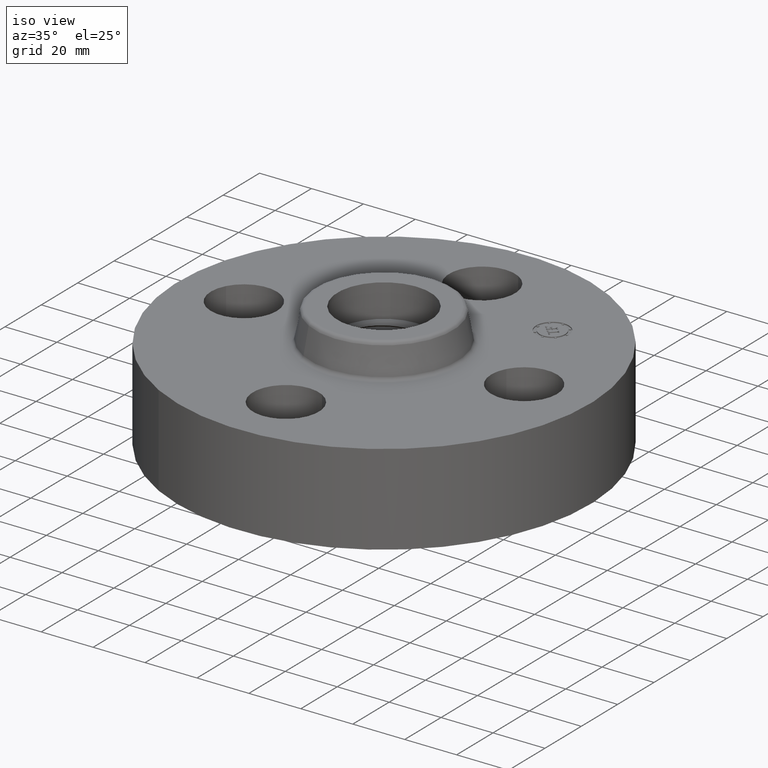
[diagram: clean part render]
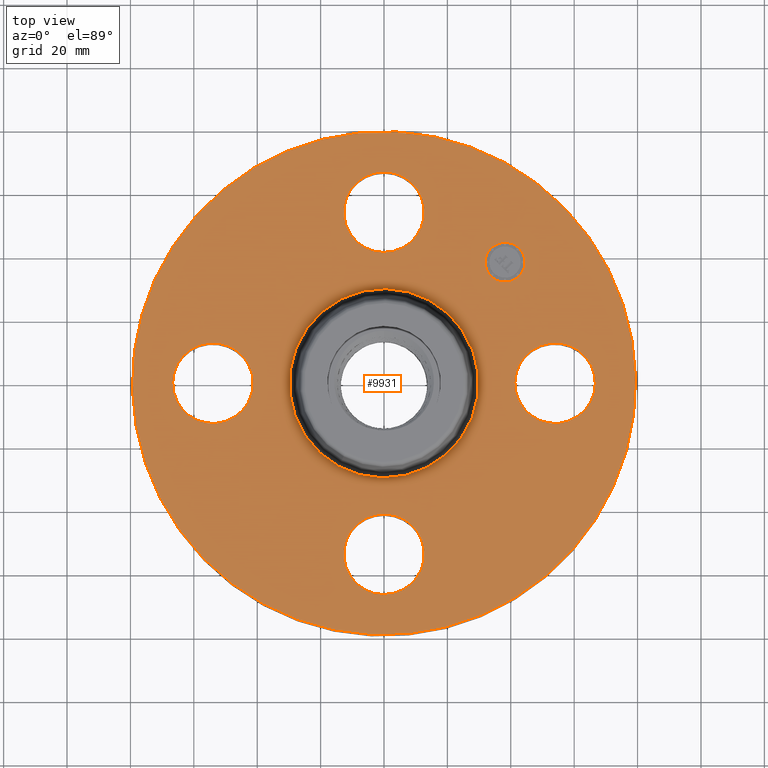
[diagram: tour spotlight — one face highlighted and labeled with its STEP entity id]
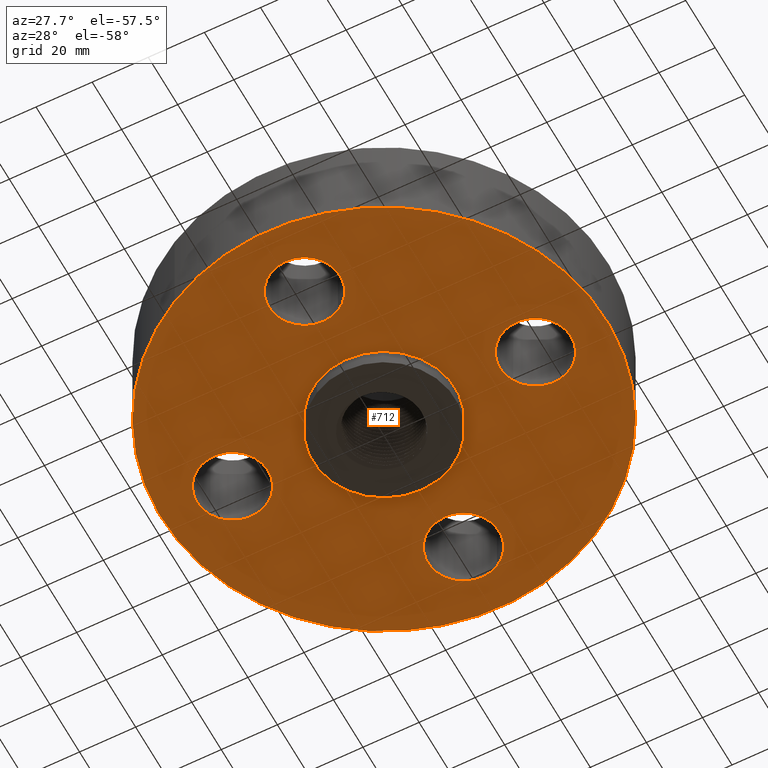
[diagram: tour spotlight — one face highlighted and labeled with its STEP entity id]
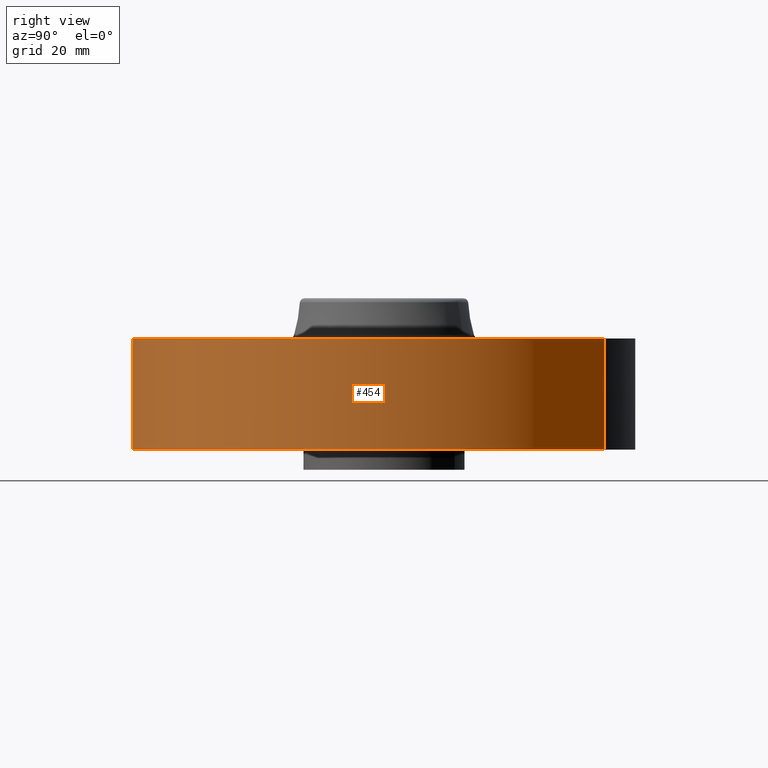
[diagram: tour spotlight — one face highlighted and labeled with its STEP entity id]
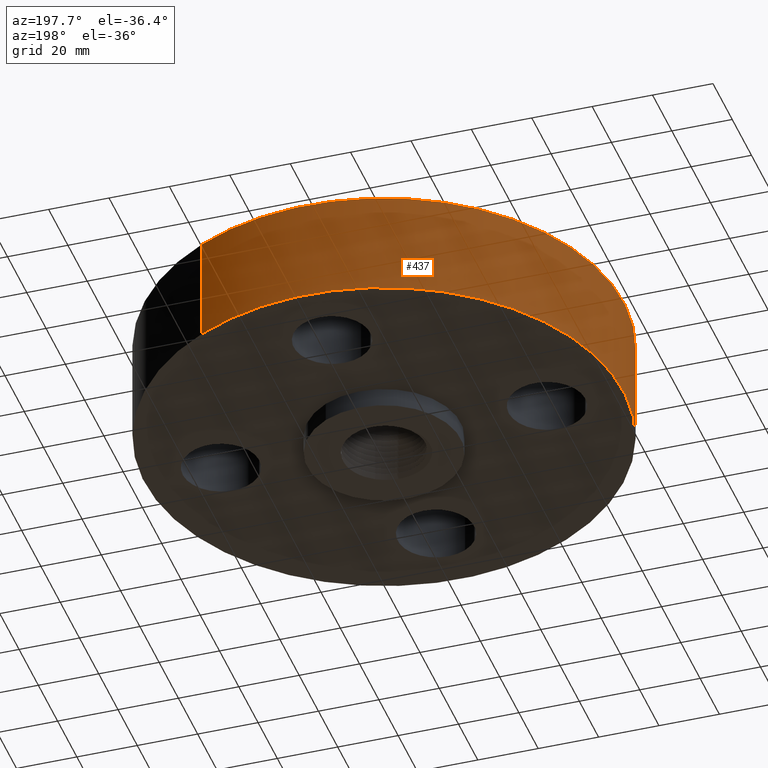
[diagram: tour spotlight — one face highlighted and labeled with its STEP entity id]
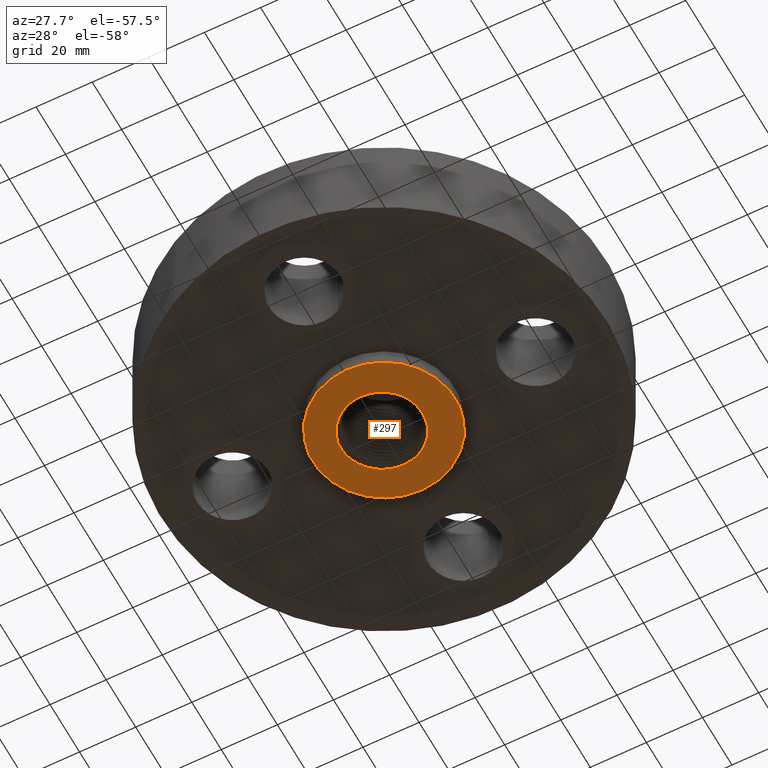
[diagram: tour spotlight — one face highlighted and labeled with its STEP entity id]
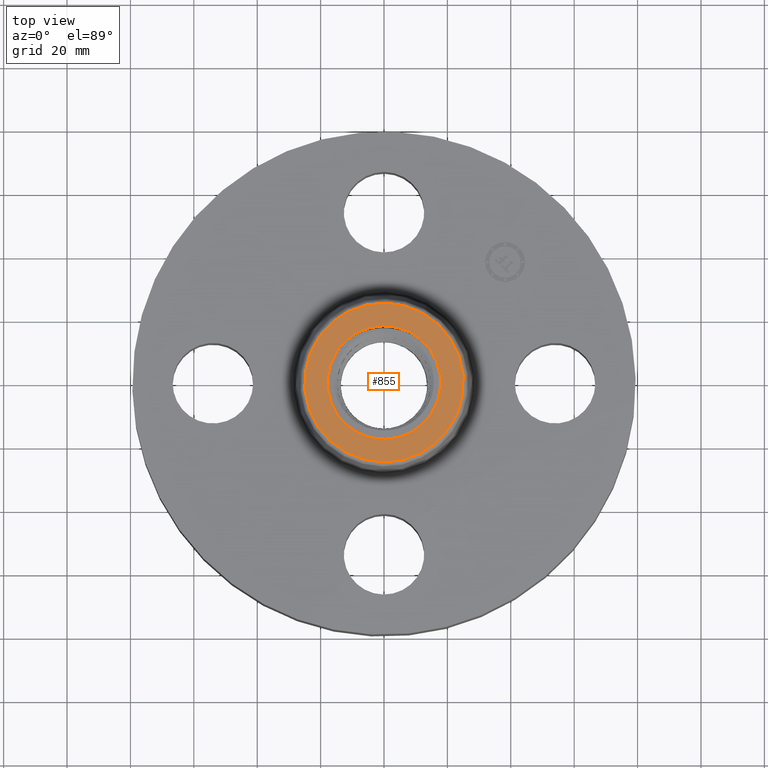
[diagram: tour spotlight — one face highlighted and labeled with its STEP entity id]
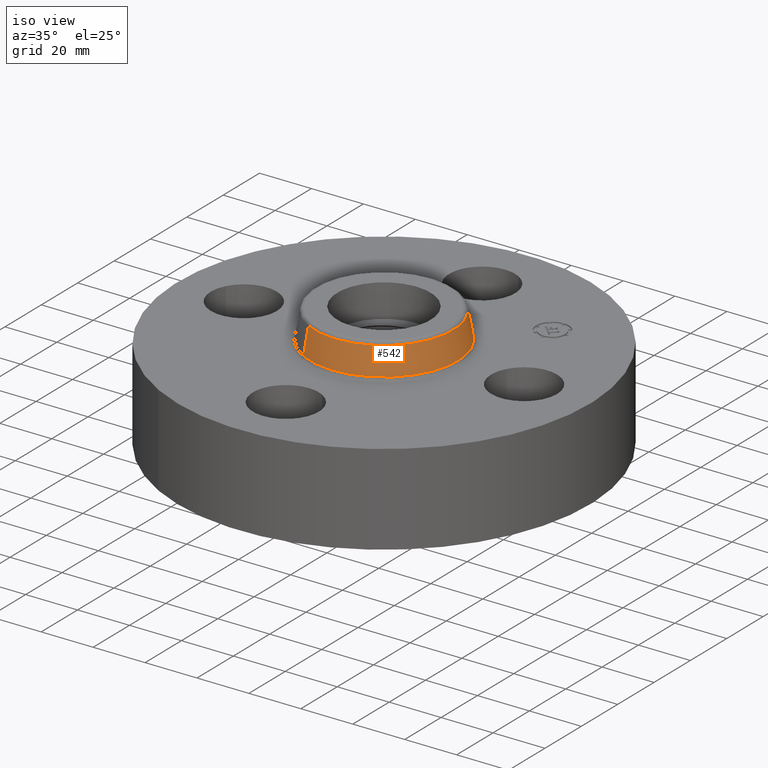
[diagram: tour spotlight — one face highlighted and labeled with its STEP entity id]
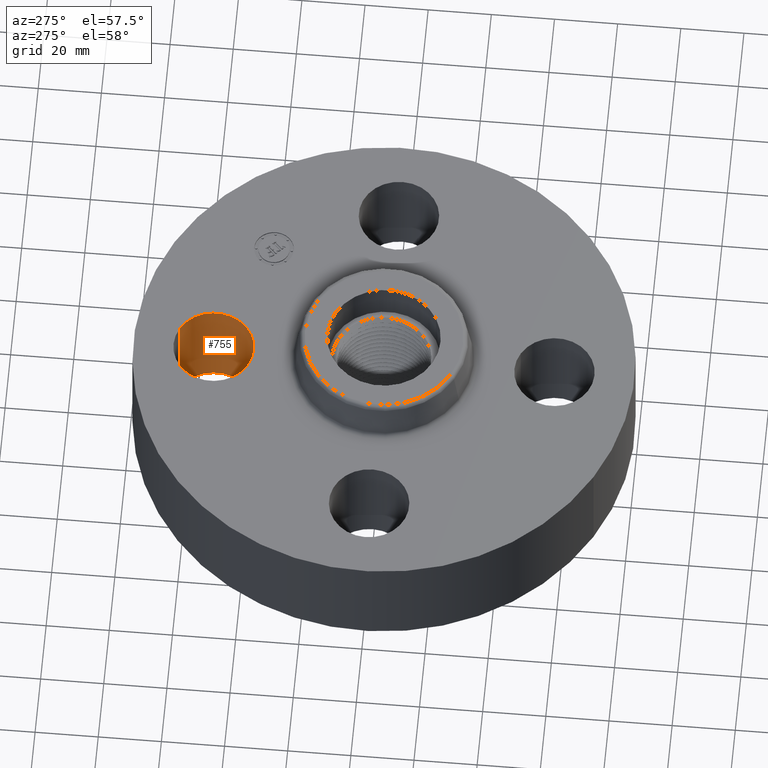
[diagram: tour spotlight — one face highlighted and labeled with its STEP entity id]
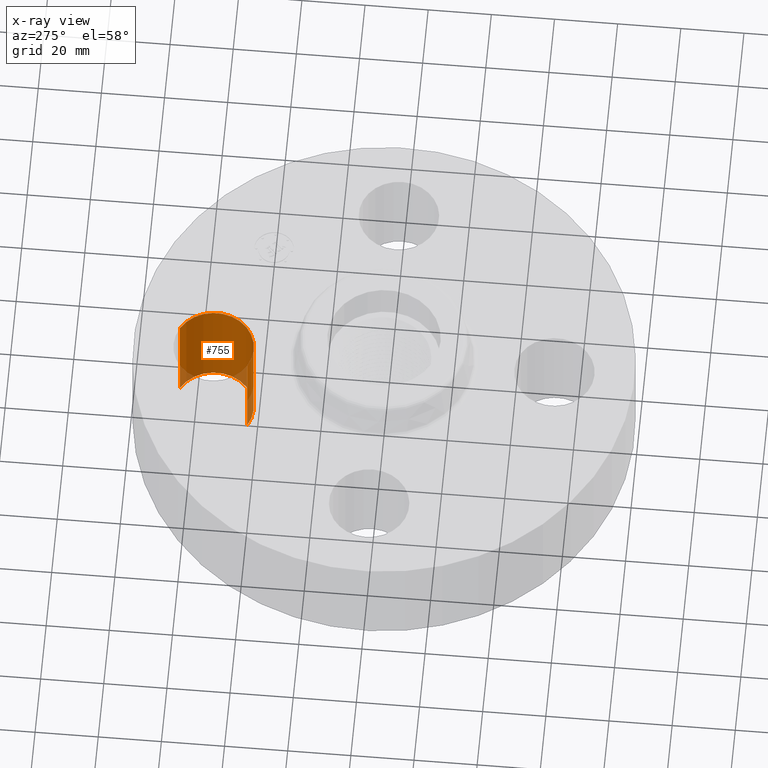
[diagram: x-ray of the same camera — body ghosted, this tour face saturated]
A machine part: a face-by-face anatomy tour. The part has 603 B-rep faces; the first image is the clean iso view, then the 8 largest visible faces are spotlighted one at a time (largest first), each with its STEP entity span.

Face 1 — top view, entity #9931. In plain terms, the highlighted planar face has unit normal (0, 0, -1).
Definition (entity closure, byte-faithful):
#371=AXIS2_PLACEMENT_3D('Circle Axis2P3D',#369,#370,$) ;
#388=AXIS2_PLACEMENT_3D('Circle Axis2P3D',#386,#387,$) ;
#421=AXIS2_PLACEMENT_3D('Circle Axis2P3D',#419,#420,$) ;
#445=AXIS2_PLACEMENT_3D('Circle Axis2P3D',#443,#444,$) ;
#462=AXIS2_PLACEMENT_3D('Circle Axis2P3D',#460,#461,$) ;
#497=AXIS2_PLACEMENT_3D('Circle Axis2P3D',#495,#496,$) ;
#734=AXIS2_PLACEMENT_3D('Circle Axis2P3D',#732,#733,$) ;
#746=AXIS2_PLACEMENT_3D('Circle Axis2P3D',#744,#745,$) ;
#777=AXIS2_PLACEMENT_3D('Circle Axis2P3D',#775,#776,$) ;
#789=AXIS2_PLACEMENT_3D('Circle Axis2P3D',#787,#788,$) ;
#820=AXIS2_PLACEMENT_3D('Circle Axis2P3D',#818,#819,$) ;
#832=AXIS2_PLACEMENT_3D('Circle Axis2P3D',#830,#831,$) ;
#9887=AXIS2_PLACEMENT_3D('Plane Axis2P3D',#9884,#9885,#9886) ;
#9915=AXIS2_PLACEMENT_3D('Circle Axis2P3D',#9913,#9914,$) ;
#9924=AXIS2_PLACEMENT_3D('Circle Axis2P3D',#9922,#9923,$) ;
#352=CARTESIAN_POINT('Vertex',(1.68620871906,0.239712769303,1.38000000001)) ;
#366=CARTESIAN_POINT('Vertex',(2.56379128096,-0.239712769303,1.38000000001)) ;
#369=CARTESIAN_POINT('Axis2P3D Location',(2.12500000001,0.,1.38000000001)) ;
#386=CARTESIAN_POINT('Axis2P3D Location',(2.12500000001,0.,1.38000000001)) ;
#416=CARTESIAN_POINT('Vertex',(-1.49820480814,-2.74244550592,1.38000000001)) ;
#419=CARTESIAN_POINT('Axis2P3D Location',(0.,0.,1.38000000001)) ;
#423=CARTESIAN_POINT('Vertex',(1.49820480814,2.74244550592,1.38000000001)) ;
#443=CARTESIAN_POINT('Axis2P3D Location',(0.,0.,1.38000000001)) ;
#460=CARTESIAN_POINT('Axis2P3D Location',(0.,0.,1.38000000001)) ;
#464=CARTESIAN_POINT('Vertex',(0.563490878489,1.03146313437,1.38000000001)) ;
#466=CARTESIAN_POINT('Vertex',(-0.563490878489,-1.03146313437,1.38000000001)) ;
#495=CARTESIAN_POINT('Axis2P3D Location',(0.,0.,1.38000000001)) ;
#722=CARTESIAN_POINT('Vertex',(-0.239712769303,1.68620871906,1.38000000001)) ;
#729=CARTESIAN_POINT('Vertex',(0.239712769303,2.56379128096,1.38000000001)) ;
#732=CARTESIAN_POINT('Axis2P3D Location',(-3.9035616723E-016,2.12500000001,1.38000000001)) ;
#744=CARTESIAN_POINT('Axis2P3D Location',(-3.9035616723E-016,2.12500000001,1.38000000001)) ;
#765=CARTESIAN_POINT('Vertex',(-1.68620871906,-0.239712769303,1.38000000001)) ;
#772=CARTESIAN_POINT('Vertex',(-2.56379128096,0.239712769303,1.38000000001)) ;
#775=CARTESIAN_POINT('Axis2P3D Location',(-2.12500000001,-2.6023744482E-016,1.38000000001)) ;
#787=CARTESIAN_POINT('Axis2P3D Location',(-2.12500000001,-2.6023744482E-016,1.38000000001)) ;
#808=CARTESIAN_POINT('Vertex',(0.239712769303,-1.68620871906,1.38000000001)) ;
#815=CARTESIAN_POINT('Vertex',(-0.239712769303,-2.56379128096,1.38000000001)) ;
#818=CARTESIAN_POINT('Axis2P3D Location',(1.3011872241E-016,-2.12500000001,1.38000000001)) ;
#830=CARTESIAN_POINT('Axis2P3D Location',(1.3011872241E-016,-2.12500000001,1.38000000001)) ;
#9884=CARTESIAN_POINT('Axis2P3D Location',(0.,3.12500000001,1.38000000001)) ;
#9913=CARTESIAN_POINT('Axis2P3D Location',(1.50260191003,1.50260191003,1.38000000001)) ;
#9917=CARTESIAN_POINT('Vertex',(1.32759298168,1.67761083837,1.38000000001)) ;
#9919=CARTESIAN_POINT('Vertex',(1.67761083837,1.32759298168,1.38000000001)) ;
#9922=CARTESIAN_POINT('Axis2P3D Location',(1.50260191003,1.50260191003,1.38000000001)) ;
#370=DIRECTION('Axis2P3D Direction',(0.,-0.,-0.0393700787402)) ;
#387=DIRECTION('Axis2P3D Direction',(0.,-0.,-0.0393700787402)) ;
#420=DIRECTION('Axis2P3D Direction',(0.,0.,-0.0393700787402)) ;
#444=DIRECTION('Axis2P3D Direction',(0.,0.,-0.0393700787402)) ;
#461=DIRECTION('Axis2P3D Direction',(0.,0.,-0.0393700787402)) ;
#496=DIRECTION('Axis2P3D Direction',(0.,0.,-0.0393700787402)) ;
#733=DIRECTION('Axis2P3D Direction',(0.,0.,-0.0393700787402)) ;
#745=DIRECTION('Axis2P3D Direction',(0.,0.,-0.0393700787402)) ;
#776=DIRECTION('Axis2P3D Direction',(-0.,0.,-0.0393700787402)) ;
#788=DIRECTION('Axis2P3D Direction',(-0.,0.,-0.0393700787402)) ;
#819=DIRECTION('Axis2P3D Direction',(0.,-0.,-0.0393700787402)) ;
#831=DIRECTION('Axis2P3D Direction',(0.,-0.,-0.0393700787402)) ;
#9885=DIRECTION('Axis2P3D Direction',(0.,0.,-0.0393700787402)) ;
#9886=DIRECTION('Axis2P3D XDirection',(0.0393700787402,0.,0.)) ;
#9914=DIRECTION('Axis2P3D Direction',(0.,0.,-0.0393700787402)) ;
#9923=DIRECTION('Axis2P3D Direction',(0.,0.,-0.0393700787402)) ;
#9890=ORIENTED_EDGE('',*,*,#447,.F.) ;
#9891=ORIENTED_EDGE('',*,*,#425,.F.) ;
#9894=ORIENTED_EDGE('',*,*,#373,.T.) ;
#9895=ORIENTED_EDGE('',*,*,#390,.T.) ;
#9898=ORIENTED_EDGE('',*,*,#499,.T.) ;
#9899=ORIENTED_EDGE('',*,*,#468,.T.) ;
#9902=ORIENTED_EDGE('',*,*,#834,.T.) ;
#9903=ORIENTED_EDGE('',*,*,#822,.T.) ;
#9906=ORIENTED_EDGE('',*,*,#791,.T.) ;
#9907=ORIENTED_EDGE('',*,*,#779,.T.) ;
#9910=ORIENTED_EDGE('',*,*,#748,.T.) ;
#9911=ORIENTED_EDGE('',*,*,#736,.T.) ;
#9928=ORIENTED_EDGE('',*,*,#9921,.T.) ;
#9929=ORIENTED_EDGE('',*,*,#9926,.T.) ;
#9896=FACE_BOUND('',#9893,.T.) ;
#9900=FACE_BOUND('',#9897,.T.) ;
#9904=FACE_BOUND('',#9901,.T.) ;
#9908=FACE_BOUND('',#9905,.T.) ;
#9912=FACE_BOUND('',#9909,.T.) ;
#9930=FACE_BOUND('',#9927,.T.) ;
#9931=ADVANCED_FACE('PartBody',(#9892,#9896,#9900,#9904,#9908,#9912,#9930),#9888,.F.) ;
#372=CIRCLE('generated circle',#371,0.500000000002) ;
#389=CIRCLE('generated circle',#388,0.500000000002) ;
#422=CIRCLE('generated circle',#421,3.12500000001) ;
#446=CIRCLE('generated circle',#445,3.12500000001) ;
#463=CIRCLE('generated circle',#462,1.17534597788) ;
#498=CIRCLE('generated circle',#497,1.17534597788) ;
#735=CIRCLE('generated circle',#734,0.500000000002) ;
#747=CIRCLE('generated circle',#746,0.500000000002) ;
#778=CIRCLE('generated circle',#777,0.500000000002) ;
#790=CIRCLE('generated circle',#789,0.500000000002) ;
#821=CIRCLE('generated circle',#820,0.500000000002) ;
#833=CIRCLE('generated circle',#832,0.500000000002) ;
#9916=CIRCLE('generated circle',#9915,0.247500000001) ;
#9925=CIRCLE('generated circle',#9924,0.247500000001) ;
#373=EDGE_CURVE('',#353,#367,#372,.T.) ;
#390=EDGE_CURVE('',#367,#353,#389,.T.) ;
#425=EDGE_CURVE('',#417,#424,#422,.T.) ;
#447=EDGE_CURVE('',#424,#417,#446,.T.) ;
#468=EDGE_CURVE('',#465,#467,#463,.T.) ;
#499=EDGE_CURVE('',#467,#465,#498,.T.) ;
#736=EDGE_CURVE('',#723,#730,#735,.T.) ;
#748=EDGE_CURVE('',#730,#723,#747,.T.) ;
#779=EDGE_CURVE('',#766,#773,#778,.T.) ;
#791=EDGE_CURVE('',#773,#766,#790,.T.) ;
#822=EDGE_CURVE('',#809,#816,#821,.T.) ;
#834=EDGE_CURVE('',#816,#809,#833,.T.) ;
#9921=EDGE_CURVE('',#9918,#9920,#9916,.T.) ;
#9926=EDGE_CURVE('',#9920,#9918,#9925,.T.) ;
#9889=EDGE_LOOP('',(#9890,#9891)) ;
#9893=EDGE_LOOP('',(#9894,#9895)) ;
#9897=EDGE_LOOP('',(#9898,#9899)) ;
#9901=EDGE_LOOP('',(#9902,#9903)) ;
#9905=EDGE_LOOP('',(#9906,#9907)) ;
#9909=EDGE_LOOP('',(#9910,#9911)) ;
#9927=EDGE_LOOP('',(#9928,#9929)) ;
#9892=FACE_OUTER_BOUND('',#9889,.T.) ;
#9888=PLANE('',#9887) ;
#353=VERTEX_POINT('',#352) ;
#367=VERTEX_POINT('',#366) ;
#417=VERTEX_POINT('',#416) ;
#424=VERTEX_POINT('',#423) ;
#465=VERTEX_POINT('',#464) ;
#467=VERTEX_POINT('',#466) ;
#723=VERTEX_POINT('',#722) ;
#730=VERTEX_POINT('',#729) ;
#766=VERTEX_POINT('',#765) ;
#773=VERTEX_POINT('',#772) ;
#809=VERTEX_POINT('',#808) ;
#816=VERTEX_POINT('',#815) ;
#9918=VERTEX_POINT('',#9917) ;
#9920=VERTEX_POINT('',#9919) ;

Face 2 — auxiliary view, entity #712. In plain terms, the highlighted planar face has unit normal (0, 0, -1).
Definition (entity closure, byte-faithful):
#357=AXIS2_PLACEMENT_3D('Circle Axis2P3D',#355,#356,$) ;
#383=AXIS2_PLACEMENT_3D('Circle Axis2P3D',#381,#382,$) ;
#405=AXIS2_PLACEMENT_3D('Circle Axis2P3D',#403,#404,$) ;
#440=AXIS2_PLACEMENT_3D('Circle Axis2P3D',#438,#439,$) ;
#612=AXIS2_PLACEMENT_3D('Circle Axis2P3D',#610,#611,$) ;
#631=AXIS2_PLACEMENT_3D('Circle Axis2P3D',#629,#630,$) ;
#644=AXIS2_PLACEMENT_3D('Plane Axis2P3D',#641,#642,#643) ;
#660=AXIS2_PLACEMENT_3D('Circle Axis2P3D',#658,#659,$) ;
#669=AXIS2_PLACEMENT_3D('Circle Axis2P3D',#667,#668,$) ;
#678=AXIS2_PLACEMENT_3D('Circle Axis2P3D',#676,#677,$) ;
#687=AXIS2_PLACEMENT_3D('Circle Axis2P3D',#685,#686,$) ;
#696=AXIS2_PLACEMENT_3D('Circle Axis2P3D',#694,#695,$) ;
#705=AXIS2_PLACEMENT_3D('Circle Axis2P3D',#703,#704,$) ;
#350=CARTESIAN_POINT('Vertex',(1.68620871906,0.239712769303,0.)) ;
#355=CARTESIAN_POINT('Axis2P3D Location',(2.12500000001,0.,0.)) ;
#359=CARTESIAN_POINT('Vertex',(2.56379128096,-0.239712769303,0.)) ;
#381=CARTESIAN_POINT('Axis2P3D Location',(2.12500000001,0.,0.)) ;
#403=CARTESIAN_POINT('Axis2P3D Location',(0.,0.,2.79741234551E-016)) ;
#407=CARTESIAN_POINT('Vertex',(-1.49820480814,-2.74244550592,2.79741234551E-016)) ;
#409=CARTESIAN_POINT('Vertex',(1.49820480814,2.74244550592,2.79741234551E-016)) ;
#438=CARTESIAN_POINT('Axis2P3D Location',(0.,0.,2.79741234551E-016)) ;
#607=CARTESIAN_POINT('Vertex',(-0.479425538606,-0.877582561894,2.79741234551E-016)) ;
#610=CARTESIAN_POINT('Axis2P3D Location',(0.,0.,1.39870617276E-016)) ;
#614=CARTESIAN_POINT('Vertex',(0.479425538606,0.877582561894,2.79741234551E-016)) ;
#629=CARTESIAN_POINT('Axis2P3D Location',(0.,0.,1.39870617276E-016)) ;
#641=CARTESIAN_POINT('Axis2P3D Location',(0.,1.,0.)) ;
#658=CARTESIAN_POINT('Axis2P3D Location',(-6.99353086378E-017,-2.12500000001,0.)) ;
#662=CARTESIAN_POINT('Vertex',(0.239712769303,-1.68620871906,0.)) ;
#664=CARTESIAN_POINT('Vertex',(-0.239712769303,-2.56379128096,0.)) ;
#667=CARTESIAN_POINT('Axis2P3D Location',(2.79741234551E-016,-2.12500000001,0.)) ;
#676=CARTESIAN_POINT('Axis2P3D Location',(-2.12500000001,0.,0.)) ;
#680=CARTESIAN_POINT('Vertex',(-1.68620871906,-0.239712769303,0.)) ;
#682=CARTESIAN_POINT('Vertex',(-2.56379128096,0.239712769303,0.)) ;
#685=CARTESIAN_POINT('Axis2P3D Location',(-2.12500000001,-1.39870617276E-016,0.)) ;
#694=CARTESIAN_POINT('Axis2P3D Location',(-2.79741234551E-016,2.12500000001,0.)) ;
#698=CARTESIAN_POINT('Vertex',(-0.239712769303,1.68620871906,0.)) ;
#700=CARTESIAN_POINT('Vertex',(0.239712769303,2.56379128096,0.)) ;
#703=CARTESIAN_POINT('Axis2P3D Location',(-7.69288395016E-016,2.12500000001,0.)) ;
#356=DIRECTION('Axis2P3D Direction',(0.,-0.,-0.0393700787402)) ;
#382=DIRECTION('Axis2P3D Direction',(0.,-0.,-0.0393700787402)) ;
#404=DIRECTION('Axis2P3D Direction',(0.,0.,-0.0393700787402)) ;
#439=DIRECTION('Axis2P3D Direction',(0.,0.,-0.0393700787402)) ;
#611=DIRECTION('Axis2P3D Direction',(0.,0.,-0.0393700787402)) ;
#630=DIRECTION('Axis2P3D Direction',(0.,0.,-0.0393700787402)) ;
#642=DIRECTION('Axis2P3D Direction',(0.,0.,-0.0393700787402)) ;
#643=DIRECTION('Axis2P3D XDirection',(0.0393700787402,0.,0.)) ;
#659=DIRECTION('Axis2P3D Direction',(0.,0.,-0.0393700787402)) ;
#668=DIRECTION('Axis2P3D Direction',(0.,0.,-0.0393700787402)) ;
#677=DIRECTION('Axis2P3D Direction',(0.,0.,-0.0393700787402)) ;
#686=DIRECTION('Axis2P3D Direction',(0.,0.,-0.0393700787402)) ;
#695=DIRECTION('Axis2P3D Direction',(0.,0.,-0.0393700787402)) ;
#704=DIRECTION('Axis2P3D Direction',(0.,0.,-0.0393700787402)) ;
#647=ORIENTED_EDGE('',*,*,#411,.T.) ;
#648=ORIENTED_EDGE('',*,*,#442,.T.) ;
#651=ORIENTED_EDGE('',*,*,#385,.F.) ;
#652=ORIENTED_EDGE('',*,*,#361,.F.) ;
#655=ORIENTED_EDGE('',*,*,#633,.F.) ;
#656=ORIENTED_EDGE('',*,*,#616,.F.) ;
#673=ORIENTED_EDGE('',*,*,#666,.F.) ;
#674=ORIENTED_EDGE('',*,*,#671,.F.) ;
#691=ORIENTED_EDGE('',*,*,#684,.F.) ;
#692=ORIENTED_EDGE('',*,*,#689,.F.) ;
#709=ORIENTED_EDGE('',*,*,#702,.F.) ;
#710=ORIENTED_EDGE('',*,*,#707,.F.) ;
#653=FACE_BOUND('',#650,.T.) ;
#657=FACE_BOUND('',#654,.T.) ;
#675=FACE_BOUND('',#672,.T.) ;
#693=FACE_BOUND('',#690,.T.) ;
#711=FACE_BOUND('',#708,.T.) ;
#712=ADVANCED_FACE('PartBody',(#649,#653,#657,#675,#693,#711),#645,.T.) ;
#358=CIRCLE('generated circle',#357,0.500000000002) ;
#384=CIRCLE('generated circle',#383,0.500000000002) ;
#406=CIRCLE('generated circle',#405,3.12500000001) ;
#441=CIRCLE('generated circle',#440,3.12500000001) ;
#613=CIRCLE('generated circle',#612,1.) ;
#632=CIRCLE('generated circle',#631,1.) ;
#661=CIRCLE('generated circle',#660,0.500000000002) ;
#670=CIRCLE('generated circle',#669,0.500000000002) ;
#679=CIRCLE('generated circle',#678,0.500000000002) ;
#688=CIRCLE('generated circle',#687,0.500000000002) ;
#697=CIRCLE('generated circle',#696,0.500000000002) ;
#706=CIRCLE('generated circle',#705,0.500000000002) ;
#361=EDGE_CURVE('',#351,#360,#358,.T.) ;
#385=EDGE_CURVE('',#360,#351,#384,.T.) ;
#411=EDGE_CURVE('',#408,#410,#406,.T.) ;
#442=EDGE_CURVE('',#410,#408,#441,.T.) ;
#616=EDGE_CURVE('',#608,#615,#613,.T.) ;
#633=EDGE_CURVE('',#615,#608,#632,.T.) ;
#666=EDGE_CURVE('',#663,#665,#661,.T.) ;
#671=EDGE_CURVE('',#665,#663,#670,.T.) ;
#684=EDGE_CURVE('',#681,#683,#679,.T.) ;
#689=EDGE_CURVE('',#683,#681,#688,.T.) ;
#702=EDGE_CURVE('',#699,#701,#697,.T.) ;
#707=EDGE_CURVE('',#701,#699,#706,.T.) ;
#646=EDGE_LOOP('',(#647,#648)) ;
#650=EDGE_LOOP('',(#651,#652)) ;
#654=EDGE_LOOP('',(#655,#656)) ;
#672=EDGE_LOOP('',(#673,#674)) ;
#690=EDGE_LOOP('',(#691,#692)) ;
#708=EDGE_LOOP('',(#709,#710)) ;
#649=FACE_OUTER_BOUND('',#646,.T.) ;
#645=PLANE('',#644) ;
#351=VERTEX_POINT('',#350) ;
#360=VERTEX_POINT('',#359) ;
#408=VERTEX_POINT('',#407) ;
#410=VERTEX_POINT('',#409) ;
#608=VERTEX_POINT('',#607) ;
#615=VERTEX_POINT('',#614) ;
#663=VERTEX_POINT('',#662) ;
#665=VERTEX_POINT('',#664) ;
#681=VERTEX_POINT('',#680) ;
#683=VERTEX_POINT('',#682) ;
#699=VERTEX_POINT('',#698) ;
#701=VERTEX_POINT('',#700) ;

Face 3 — right view, entity #454. In plain terms, the highlighted cylindrical surface (partial cylindrical patch) has radius 79.375 mm, axis along (0, 0, -1).
Definition (entity closure, byte-faithful):
#401=AXIS2_PLACEMENT_3D('Cylinder Axis2P3D',#398,#399,#400) ;
#440=AXIS2_PLACEMENT_3D('Circle Axis2P3D',#438,#439,$) ;
#445=AXIS2_PLACEMENT_3D('Circle Axis2P3D',#443,#444,$) ;
#398=CARTESIAN_POINT('Axis2P3D Location',(0.,0.,0.815000000003)) ;
#407=CARTESIAN_POINT('Vertex',(-1.49820480814,-2.74244550592,2.79741234551E-016)) ;
#409=CARTESIAN_POINT('Vertex',(1.49820480814,2.74244550592,2.79741234551E-016)) ;
#412=CARTESIAN_POINT('Line Origine',(-1.49820480814,-2.74244550592,0.690000000003)) ;
#416=CARTESIAN_POINT('Vertex',(-1.49820480814,-2.74244550592,1.38000000001)) ;
#423=CARTESIAN_POINT('Vertex',(1.49820480814,2.74244550592,1.38000000001)) ;
#426=CARTESIAN_POINT('Line Origine',(1.49820480814,2.74244550592,0.690000000003)) ;
#438=CARTESIAN_POINT('Axis2P3D Location',(0.,0.,2.79741234551E-016)) ;
#443=CARTESIAN_POINT('Axis2P3D Location',(0.,0.,1.38000000001)) ;
#399=DIRECTION('Axis2P3D Direction',(0.,0.,-0.0393700787402)) ;
#400=DIRECTION('Axis2P3D XDirection',(0.0188750212049,0.0345504945626,0.)) ;
#413=DIRECTION('Vector Direction',(0.,0.,-0.0393700787402)) ;
#427=DIRECTION('Vector Direction',(0.,0.,-0.0393700787402)) ;
#439=DIRECTION('Axis2P3D Direction',(0.,0.,-0.0393700787402)) ;
#444=DIRECTION('Axis2P3D Direction',(0.,0.,-0.0393700787402)) ;
#414=VECTOR('Line Direction',#413,0.0393700787402) ;
#428=VECTOR('Line Direction',#427,0.0393700787402) ;
#449=ORIENTED_EDGE('',*,*,#442,.F.) ;
#450=ORIENTED_EDGE('',*,*,#430,.T.) ;
#451=ORIENTED_EDGE('',*,*,#447,.T.) ;
#452=ORIENTED_EDGE('',*,*,#418,.F.) ;
#454=ADVANCED_FACE('PartBody',(#453),#402,.T.) ;
#441=CIRCLE('generated circle',#440,3.12500000001) ;
#446=CIRCLE('generated circle',#445,3.12500000001) ;
#402=CYLINDRICAL_SURFACE('generated cylinder',#401,3.12500000001) ;
#418=EDGE_CURVE('',#408,#417,#415,.F.) ;
#430=EDGE_CURVE('',#410,#424,#429,.F.) ;
#442=EDGE_CURVE('',#410,#408,#441,.T.) ;
#447=EDGE_CURVE('',#424,#417,#446,.T.) ;
#448=EDGE_LOOP('',(#449,#450,#451,#452)) ;
#453=FACE_OUTER_BOUND('',#448,.T.) ;
#415=LINE('Line',#412,#414) ;
#429=LINE('Line',#426,#428) ;
#408=VERTEX_POINT('',#407) ;
#410=VERTEX_POINT('',#409) ;
#417=VERTEX_POINT('',#416) ;
#424=VERTEX_POINT('',#423) ;

Face 4 — auxiliary view, entity #437. In plain terms, the highlighted cylindrical surface (partial cylindrical patch) has radius 79.375 mm, axis along (0, 0, -1).
Definition (entity closure, byte-faithful):
#401=AXIS2_PLACEMENT_3D('Cylinder Axis2P3D',#398,#399,#400) ;
#405=AXIS2_PLACEMENT_3D('Circle Axis2P3D',#403,#404,$) ;
#421=AXIS2_PLACEMENT_3D('Circle Axis2P3D',#419,#420,$) ;
#398=CARTESIAN_POINT('Axis2P3D Location',(0.,0.,0.815000000003)) ;
#403=CARTESIAN_POINT('Axis2P3D Location',(0.,0.,2.79741234551E-016)) ;
#407=CARTESIAN_POINT('Vertex',(-1.49820480814,-2.74244550592,2.79741234551E-016)) ;
#409=CARTESIAN_POINT('Vertex',(1.49820480814,2.74244550592,2.79741234551E-016)) ;
#412=CARTESIAN_POINT('Line Origine',(-1.49820480814,-2.74244550592,0.690000000003)) ;
#416=CARTESIAN_POINT('Vertex',(-1.49820480814,-2.74244550592,1.38000000001)) ;
#419=CARTESIAN_POINT('Axis2P3D Location',(0.,0.,1.38000000001)) ;
#423=CARTESIAN_POINT('Vertex',(1.49820480814,2.74244550592,1.38000000001)) ;
#426=CARTESIAN_POINT('Line Origine',(1.49820480814,2.74244550592,0.690000000003)) ;
#399=DIRECTION('Axis2P3D Direction',(0.,0.,-0.0393700787402)) ;
#400=DIRECTION('Axis2P3D XDirection',(0.0188750212049,0.0345504945626,0.)) ;
#404=DIRECTION('Axis2P3D Direction',(0.,0.,-0.0393700787402)) ;
#413=DIRECTION('Vector Direction',(0.,0.,-0.0393700787402)) ;
#420=DIRECTION('Axis2P3D Direction',(0.,0.,-0.0393700787402)) ;
#427=DIRECTION('Vector Direction',(0.,0.,-0.0393700787402)) ;
#414=VECTOR('Line Direction',#413,0.0393700787402) ;
#428=VECTOR('Line Direction',#427,0.0393700787402) ;
#432=ORIENTED_EDGE('',*,*,#411,.F.) ;
#433=ORIENTED_EDGE('',*,*,#418,.T.) ;
#434=ORIENTED_EDGE('',*,*,#425,.T.) ;
#435=ORIENTED_EDGE('',*,*,#430,.F.) ;
#437=ADVANCED_FACE('PartBody',(#436),#402,.T.) ;
#406=CIRCLE('generated circle',#405,3.12500000001) ;
#422=CIRCLE('generated circle',#421,3.12500000001) ;
#402=CYLINDRICAL_SURFACE('generated cylinder',#401,3.12500000001) ;
#411=EDGE_CURVE('',#408,#410,#406,.T.) ;
#418=EDGE_CURVE('',#408,#417,#415,.F.) ;
#425=EDGE_CURVE('',#417,#424,#422,.T.) ;
#430=EDGE_CURVE('',#410,#424,#429,.F.) ;
#431=EDGE_LOOP('',(#432,#433,#434,#435)) ;
#436=FACE_OUTER_BOUND('',#431,.T.) ;
#415=LINE('Line',#412,#414) ;
#429=LINE('Line',#426,#428) ;
#408=VERTEX_POINT('',#407) ;
#410=VERTEX_POINT('',#409) ;
#417=VERTEX_POINT('',#416) ;
#424=VERTEX_POINT('',#423) ;

Face 5 — auxiliary view, entity #297. In plain terms, the highlighted planar face has unit normal (0, 0, -1).
Definition (entity closure, byte-faithful):
#168=AXIS2_PLACEMENT_3D('Plane Axis2P3D',#165,#166,#167) ;
#172=AXIS2_PLACEMENT_3D('Circle Axis2P3D',#170,#171,$) ;
#181=AXIS2_PLACEMENT_3D('Circle Axis2P3D',#179,#180,$) ;
#285=AXIS2_PLACEMENT_3D('Circle Axis2P3D',#283,#284,$) ;
#165=CARTESIAN_POINT('Axis2P3D Location',(0.,0.,-0.250000000001)) ;
#170=CARTESIAN_POINT('Axis2P3D Location',(0.,0.,-0.250000000001)) ;
#174=CARTESIAN_POINT('Vertex',(0.479425538606,0.877582561894,-0.250000000001)) ;
#176=CARTESIAN_POINT('Vertex',(-0.479425538606,-0.877582561894,-0.250000000001)) ;
#179=CARTESIAN_POINT('Axis2P3D Location',(0.,0.,-0.250000000001)) ;
#189=CARTESIAN_POINT('Control Point',(4.87298111973E-005,0.566629327253,-0.250000000001)) ;
#190=CARTESIAN_POINT('Control Point',(0.0488553655335,0.564796087086,-0.250000000001)) ;
#191=CARTESIAN_POINT('Control Point',(0.0973675142853,0.557704145141,-0.250000000001)) ;
#192=CARTESIAN_POINT('Control Point',(0.144819641434,0.54539581353,-0.250000000001)) ;
#193=CARTESIAN_POINT('Control Point',(0.245258667845,0.507301362468,-0.250000000001)) ;
#194=CARTESIAN_POINT('Control Point',(0.333689369887,0.446726114342,-0.250000000001)) ;
#195=CARTESIAN_POINT('Control Point',(0.377206004943,0.407603482007,-0.250000000001)) ;
#196=CARTESIAN_POINT('Control Point',(0.440168010892,0.333840149706,-0.250000000001)) ;
#197=CARTESIAN_POINT('Control Point',(0.485247767973,0.24893047859,-0.250000000001)) ;
#198=CARTESIAN_POINT('Control Point',(0.500208256287,0.213520110066,-0.250000000001)) ;
#199=CARTESIAN_POINT('Control Point',(0.518203665976,0.157587998559,-0.250000000001)) ;
#200=CARTESIAN_POINT('Control Point',(0.52843624367,0.100057530606,-0.250000000001)) ;
#201=CARTESIAN_POINT('Control Point',(0.53104327966,0.0799214333848,-0.250000000001)) ;
#202=CARTESIAN_POINT('Control Point',(0.532693252243,0.0597133910418,-0.250000000001)) ;
#203=CARTESIAN_POINT('Control Point',(0.533385685351,0.0394936444525,-0.250000000001)) ;
#204=CARTESIAN_POINT('Vertex',(4.87298111975E-005,0.566629327253,-0.250000000001)) ;
#206=CARTESIAN_POINT('Vertex',(0.533386205356,0.0394938448885,-0.250000346046)) ;
#210=CARTESIAN_POINT('Control Point',(-0.276716128162,0.506598897193,-0.250000000001)) ;
#211=CARTESIAN_POINT('Control Point',(-0.23036192449,0.529748312167,-0.250000000001)) ;
#212=CARTESIAN_POINT('Control Point',(-0.18150087587,0.5476473118,-0.250000000001)) ;
#213=CARTESIAN_POINT('Control Point',(-0.130903312857,0.559920713434,-0.250000000001)) ;
#214=CARTESIAN_POINT('Control Point',(-0.0738408867216,0.567070640317,-0.250000000001)) ;
#215=CARTESIAN_POINT('Control Point',(-0.0168253712694,0.567053403839,-0.250000000001)) ;
#216=CARTESIAN_POINT('Control Point',(-0.0111965611742,0.566981826038,-0.250000000001)) ;
#217=CARTESIAN_POINT('Control Point',(-0.00557195800633,0.566840447508,-0.250000000001)) ;
#218=CARTESIAN_POINT('Control Point',(4.87298111976E-005,0.566629327253,-0.250000000001)) ;
#219=CARTESIAN_POINT('Vertex',(-0.276716128162,0.506598897193,-0.250000000001)) ;
#223=CARTESIAN_POINT('Control Point',(-0.594957869021,-0.101655704768,-0.250000000001)) ;
#224=CARTESIAN_POINT('Control Point',(-0.601695195508,-0.0517024794489,-0.250000000001)) ;
#225=CARTESIAN_POINT('Control Point',(-0.603203011135,-0.00113422573724,-0.250000000001)) ;
#226=CARTESIAN_POINT('Control Point',(-0.59939318565,0.0493168982897,-0.250000000001)) ;
#227=CARTESIAN_POINT('Control Point',(-0.57946999518,0.158394498032,-0.250000000001)) ;
#228=CARTESIAN_POINT('Control Point',(-0.535218822717,0.259872762297,-0.250000000001)) ;
#229=CARTESIAN_POINT('Control Point',(-0.504219379925,0.311752722884,-0.250000000001)) ;
#230=CARTESIAN_POINT('Control Point',(-0.444190225142,0.388102770032,-0.250000000001)) ;
#231=CARTESIAN_POINT('Control Point',(-0.37048788634,0.450122501772,-0.250000000001)) ;
#232=CARTESIAN_POINT('Control Point',(-0.340653937834,0.471454361781,-0.250000000001)) ;
#233=CARTESIAN_POINT('Control Point',(-0.309304557234,0.49032414753,-0.250000000001)) ;
#234=CARTESIAN_POINT('Control Point',(-0.276716128162,0.506598897193,-0.250000000001)) ;
#235=CARTESIAN_POINT('Vertex',(-0.594957869021,-0.101655704768,-0.250000000001)) ;
#239=CARTESIAN_POINT('Control Point',(-0.594957869021,-0.101655704768,-0.250000000001)) ;
#240=CARTESIAN_POINT('Control Point',(-0.588710139768,-0.131241129925,-0.250000000001)) ;
#241=CARTESIAN_POINT('Control Point',(-0.580615399024,-0.160401952598,-0.250000000001)) ;
#242=CARTESIAN_POINT('Control Point',(-0.570709072603,-0.188981300653,-0.250000000001)) ;
#243=CARTESIAN_POINT('Control Point',(-0.539605758925,-0.263249709623,-0.250000000001)) ;
#244=CARTESIAN_POINT('Control Point',(-0.496540265389,-0.331294901677,-0.250000000001)) ;
#245=CARTESIAN_POINT('Control Point',(-0.465289106798,-0.370739908587,-0.250000000001)) ;
#246=CARTESIAN_POINT('Control Point',(-0.388067107277,-0.449447427677,-0.250000000001)) ;
#247=CARTESIAN_POINT('Control Point',(-0.29502523956,-0.508173032132,-0.250000000001)) ;
#248=CARTESIAN_POINT('Control Point',(-0.240563752469,-0.533468455212,-0.250000000001)) ;
#249=CARTESIAN_POINT('Control Point',(-0.159269441137,-0.559174867293,-0.250000000001)) ;
#250=CARTESIAN_POINT('Control Point',(-0.0755147951787,-0.56961212048,-0.250000000001)) ;
#251=CARTESIAN_POINT('Control Point',(-0.0503132367897,-0.571351977954,-0.250000000001)) ;
#252=CARTESIAN_POINT('Control Point',(-0.0250944352026,-0.571700802887,-0.250000000001)) ;
#253=CARTESIAN_POINT('Control Point',(3.83051686374E-005,-0.570664884892,-0.250000000001)) ;
#254=CARTESIAN_POINT('Vertex',(3.83051686384E-005,-0.570664884892,-0.250000000001)) ;
#258=CARTESIAN_POINT('Control Point',(3.83051686383E-005,-0.570664884892,-0.250000000001)) ;
#259=CARTESIAN_POINT('Control Point',(0.0568153385439,-0.568324656351,-0.250000000001)) ;
#260=CARTESIAN_POINT('Control Point',(0.113154716399,-0.558917375737,-0.250000000001)) ;
#261=CARTESIAN_POINT('Control Point',(0.167901041953,-0.542507125152,-0.250000000001)) ;
#262=CARTESIAN_POINT('Control Point',(0.21984627886,-0.519481711261,-0.250000000001)) ;
#263=CARTESIAN_POINT('Control Point',(0.268007859203,-0.490475610248,-0.250000000001)) ;
#264=CARTESIAN_POINT('Vertex',(0.268007859203,-0.490475610248,-0.250000000001)) ;
#268=CARTESIAN_POINT('Control Point',(0.268007859203,-0.490475610248,-0.250000000001)) ;
#269=CARTESIAN_POINT('Control Point',(0.309561365815,-0.465449330167,-0.250000000001)) ;
#270=CARTESIAN_POINT('Control Point',(0.348299290983,-0.435970297319,-0.250000000001)) ;
#271=CARTESIAN_POINT('Control Point',(0.383568925895,-0.402452613357,-0.250000000001)) ;
#272=CARTESIAN_POINT('Control Point',(0.45235413085,-0.321009055834,-0.250000000001)) ;
#273=CARTESIAN_POINT('Control Point',(0.499669983602,-0.225837412142,-0.250000000001)) ;
#274=CARTESIAN_POINT('Control Point',(0.518388739172,-0.170927347932,-0.250000000001)) ;
#275=CARTESIAN_POINT('Control Point',(0.530893682709,-0.107765264617,-0.250000000001)) ;
#276=CARTESIAN_POINT('Control Point',(0.533954673172,-0.0442117020363,-0.250000000001)) ;
#277=CARTESIAN_POINT('Control Point',(0.53417142532,-0.0375639414092,-0.250000000001)) ;
#278=CARTESIAN_POINT('Control Point',(0.534284786773,-0.0309186771562,-0.250000000001)) ;
#279=CARTESIAN_POINT('Control Point',(0.534294900372,-0.0242755486495,-0.250000000001)) ;
#280=CARTESIAN_POINT('Vertex',(0.53429516318,-0.0242755660594,-0.249999847753)) ;
#283=CARTESIAN_POINT('Axis2P3D Location',(1.39870617276E-016,3.49676543189E-017,-0.250000000001)) ;
#166=DIRECTION('Axis2P3D Direction',(0.,0.,-0.0393700787402)) ;
#167=DIRECTION('Axis2P3D XDirection',(0.0393700787402,0.,0.)) ;
#171=DIRECTION('Axis2P3D Direction',(0.,0.,-0.0393700787402)) ;
#180=DIRECTION('Axis2P3D Direction',(0.,0.,-0.0393700787402)) ;
#284=DIRECTION('Axis2P3D Direction',(0.,0.,-0.0393700787402)) ;
#185=ORIENTED_EDGE('',*,*,#178,.T.) ;
#186=ORIENTED_EDGE('',*,*,#183,.T.) ;
#289=ORIENTED_EDGE('',*,*,#208,.F.) ;
#290=ORIENTED_EDGE('',*,*,#221,.F.) ;
#291=ORIENTED_EDGE('',*,*,#237,.F.) ;
#292=ORIENTED_EDGE('',*,*,#256,.T.) ;
#293=ORIENTED_EDGE('',*,*,#266,.T.) ;
#294=ORIENTED_EDGE('',*,*,#282,.T.) ;
#295=ORIENTED_EDGE('',*,*,#287,.F.) ;
#296=FACE_BOUND('',#288,.T.) ;
#297=ADVANCED_FACE('PartBody',(#187,#296),#169,.T.) ;
#188=B_SPLINE_CURVE_WITH_KNOTS('',5,(#189,#190,#191,#192,#193,#194,#195,#196,#197,#198,#199,#200,#201,#202,#203),.UNSPECIFIED.,.F.,.U.,(6,3,3,3,6),(0.,8.79210017326,19.3482119842,26.3845995221,30.1349858297),.UNSPECIFIED.) ;
#209=B_SPLINE_CURVE_WITH_KNOTS('',5,(#210,#211,#212,#213,#214,#215,#216,#217,#218),.UNSPECIFIED.,.F.,.U.,(6,3,6),(0.,9.24320906966,10.2557281583),.UNSPECIFIED.) ;
#222=B_SPLINE_CURVE_WITH_KNOTS('',5,(#223,#224,#225,#226,#227,#228,#229,#230,#231,#232,#233,#234),.UNSPECIFIED.,.F.,.U.,(6,3,3,6),(0.,8.80525746484,19.371015432,25.8692753253),.UNSPECIFIED.) ;
#238=B_SPLINE_CURVE_WITH_KNOTS('',5,(#239,#240,#241,#242,#243,#244,#245,#246,#247,#248,#249,#250,#251,#252,#253),.UNSPECIFIED.,.F.,.U.,(6,3,3,3,6),(0.,5.28238950725,14.0882889048,24.6563131378,29.1738679096),.UNSPECIFIED.) ;
#257=B_SPLINE_CURVE_WITH_KNOTS('',5,(#258,#259,#260,#261,#262,#263),.UNSPECIFIED.,.F.,.U.,(6,6),(0.,10.2055468018),.UNSPECIFIED.) ;
#267=B_SPLINE_CURVE_WITH_KNOTS('',5,(#268,#269,#270,#271,#272,#273,#274,#275,#276,#277,#278,#279),.UNSPECIFIED.,.F.,.U.,(6,3,3,6),(0.,8.80528114792,19.3832712026,20.618032294),.UNSPECIFIED.) ;
#173=CIRCLE('generated circle',#172,1.) ;
#182=CIRCLE('generated circle',#181,1.) ;
#286=CIRCLE('generated circle',#285,0.534846351222) ;
#178=EDGE_CURVE('',#175,#177,#173,.T.) ;
#183=EDGE_CURVE('',#177,#175,#182,.T.) ;
#208=EDGE_CURVE('',#205,#207,#188,.T.) ;
#221=EDGE_CURVE('',#220,#205,#209,.T.) ;
#237=EDGE_CURVE('',#236,#220,#222,.T.) ;
#256=EDGE_CURVE('',#236,#255,#238,.T.) ;
#266=EDGE_CURVE('',#255,#265,#257,.T.) ;
#282=EDGE_CURVE('',#265,#281,#267,.T.) ;
#287=EDGE_CURVE('',#207,#281,#286,.T.) ;
#184=EDGE_LOOP('',(#185,#186)) ;
#288=EDGE_LOOP('',(#289,#290,#291,#292,#293,#294,#295)) ;
#187=FACE_OUTER_BOUND('',#184,.T.) ;
#169=PLANE('',#168) ;
#175=VERTEX_POINT('',#174) ;
#177=VERTEX_POINT('',#176) ;
#205=VERTEX_POINT('',#204) ;
#207=VERTEX_POINT('',#206) ;
#220=VERTEX_POINT('',#219) ;
#236=VERTEX_POINT('',#235) ;
#255=VERTEX_POINT('',#254) ;
#265=VERTEX_POINT('',#264) ;
#281=VERTEX_POINT('',#280) ;

Face 6 — top view, entity #855. In plain terms, the highlighted planar face has unit normal (0, 0, -1).
Definition (entity closure, byte-faithful):
#305=AXIS2_PLACEMENT_3D('Circle Axis2P3D',#303,#304,$) ;
#331=AXIS2_PLACEMENT_3D('Circle Axis2P3D',#329,#330,$) ;
#569=AXIS2_PLACEMENT_3D('Circle Axis2P3D',#567,#568,$) ;
#588=AXIS2_PLACEMENT_3D('Circle Axis2P3D',#586,#587,$) ;
#845=AXIS2_PLACEMENT_3D('Plane Axis2P3D',#842,#843,#844) ;
#303=CARTESIAN_POINT('Axis2P3D Location',(0.,0.,1.88000000001)) ;
#307=CARTESIAN_POINT('Vertex',(0.337995004717,-0.618695706135,1.88000000001)) ;
#309=CARTESIAN_POINT('Vertex',(-0.337995004717,0.618695706135,1.88000000001)) ;
#329=CARTESIAN_POINT('Axis2P3D Location',(0.,0.,1.88000000001)) ;
#564=CARTESIAN_POINT('Vertex',(0.472948754526,0.865726888159,1.88000000001)) ;
#567=CARTESIAN_POINT('Axis2P3D Location',(0.,0.,1.88000000001)) ;
#571=CARTESIAN_POINT('Vertex',(-0.472948754526,-0.865726888159,1.88000000001)) ;
#586=CARTESIAN_POINT('Axis2P3D Location',(0.,0.,1.88000000001)) ;
#842=CARTESIAN_POINT('Axis2P3D Location',(0.,0.986490531779,1.88000000001)) ;
#304=DIRECTION('Axis2P3D Direction',(0.,0.,0.0393700787402)) ;
#330=DIRECTION('Axis2P3D Direction',(0.,0.,0.0393700787402)) ;
#568=DIRECTION('Axis2P3D Direction',(0.,0.,-0.0393700787402)) ;
#587=DIRECTION('Axis2P3D Direction',(0.,0.,-0.0393700787402)) ;
#843=DIRECTION('Axis2P3D Direction',(0.,0.,-0.0393700787402)) ;
#844=DIRECTION('Axis2P3D XDirection',(0.0393700787402,0.,0.)) ;
#848=ORIENTED_EDGE('',*,*,#573,.F.) ;
#849=ORIENTED_EDGE('',*,*,#590,.F.) ;
#852=ORIENTED_EDGE('',*,*,#333,.T.) ;
#853=ORIENTED_EDGE('',*,*,#311,.T.) ;
#854=FACE_BOUND('',#851,.T.) ;
#855=ADVANCED_FACE('PartBody',(#850,#854),#846,.F.) ;
#306=CIRCLE('generated circle',#305,0.705000000003) ;
#332=CIRCLE('generated circle',#331,0.705000000003) ;
#570=CIRCLE('generated circle',#569,0.986490531779) ;
#589=CIRCLE('generated circle',#588,0.986490531779) ;
#311=EDGE_CURVE('',#308,#310,#306,.F.) ;
#333=EDGE_CURVE('',#310,#308,#332,.F.) ;
#573=EDGE_CURVE('',#565,#572,#570,.T.) ;
#590=EDGE_CURVE('',#572,#565,#589,.T.) ;
#847=EDGE_LOOP('',(#848,#849)) ;
#851=EDGE_LOOP('',(#852,#853)) ;
#850=FACE_OUTER_BOUND('',#847,.T.) ;
#846=PLANE('',#845) ;
#308=VERTEX_POINT('',#307) ;
#310=VERTEX_POINT('',#309) ;
#565=VERTEX_POINT('',#564) ;
#572=VERTEX_POINT('',#571) ;

Face 7 — iso view, entity #542. In plain terms, the highlighted conical surface has half-angle 10 deg.
Definition (entity closure, byte-faithful):
#478=AXIS2_PLACEMENT_3D('Circle Axis2P3D',#476,#477,$) ;
#515=AXIS2_PLACEMENT_3D('Cone Axis2P3D',#512,#513,#514) ;
#526=AXIS2_PLACEMENT_3D('Circle Axis2P3D',#524,#525,$) ;
#473=CARTESIAN_POINT('Vertex',(0.535162359244,0.97960812772,1.42958110935)) ;
#476=CARTESIAN_POINT('Axis2P3D Location',(0.,0.,1.42958110935)) ;
#480=CARTESIAN_POINT('Vertex',(-0.535162359244,-0.97960812772,1.42958110935)) ;
#512=CARTESIAN_POINT('Axis2P3D Location',(0.,0.,1.83041889067)) ;
#517=CARTESIAN_POINT('Line Origine',(0.518219816508,0.948595011265,1.63000000001)) ;
#521=CARTESIAN_POINT('Vertex',(0.501277273771,0.917581894811,1.83041889067)) ;
#524=CARTESIAN_POINT('Axis2P3D Location',(0.,0.,1.83041889067)) ;
#528=CARTESIAN_POINT('Vertex',(-0.501277273771,-0.917581894811,1.83041889067)) ;
#531=CARTESIAN_POINT('Line Origine',(-0.518219816508,-0.948595011265,1.63000000001)) ;
#477=DIRECTION('Axis2P3D Direction',(0.,0.,-0.0393700787402)) ;
#513=DIRECTION('Axis2P3D Direction',(0.,0.,-0.0393700787402)) ;
#514=DIRECTION('Axis2P3D XDirection',(-0.0188750212049,-0.0345504945626,0.)) ;
#518=DIRECTION('Vector Direction',(0.00327761303565,0.00599963041829,-0.03877195878)) ;
#525=DIRECTION('Axis2P3D Direction',(0.,0.,-0.0393700787402)) ;
#532=DIRECTION('Vector Direction',(-0.00327761303565,-0.00599963041829,-0.03877195878)) ;
#519=VECTOR('Line Direction',#518,0.0393700787402) ;
#533=VECTOR('Line Direction',#532,0.0393700787402) ;
#537=ORIENTED_EDGE('',*,*,#482,.F.) ;
#538=ORIENTED_EDGE('',*,*,#523,.T.) ;
#539=ORIENTED_EDGE('',*,*,#530,.T.) ;
#540=ORIENTED_EDGE('',*,*,#535,.F.) ;
#542=ADVANCED_FACE('PartBody',(#541),#516,.T.) ;
#479=CIRCLE('generated circle',#478,1.11625751269) ;
#527=CIRCLE('generated circle',#526,1.04557899696) ;
#516=CONICAL_SURFACE('Cone',#515,1.04557899696,0.174532925199) ;
#482=EDGE_CURVE('',#474,#481,#479,.T.) ;
#523=EDGE_CURVE('',#474,#522,#520,.F.) ;
#530=EDGE_CURVE('',#522,#529,#527,.T.) ;
#535=EDGE_CURVE('',#481,#529,#534,.F.) ;
#536=EDGE_LOOP('',(#537,#538,#539,#540)) ;
#541=FACE_OUTER_BOUND('',#536,.T.) ;
#520=LINE('Line',#517,#519) ;
#534=LINE('Line',#531,#533) ;
#474=VERTEX_POINT('',#473) ;
#481=VERTEX_POINT('',#480) ;
#522=VERTEX_POINT('',#521) ;
#529=VERTEX_POINT('',#528) ;

Face 8 — auxiliary view, entity #755. An x-ray twin of the same camera follows (body ghosted, this face saturated) — the face is partly hidden behind the body. In plain terms, the highlighted cylindrical surface (partial cylindrical patch) has radius 12.7 mm, axis along (0, 0, -1).
Definition (entity closure, byte-faithful):
#705=AXIS2_PLACEMENT_3D('Circle Axis2P3D',#703,#704,$) ;
#716=AXIS2_PLACEMENT_3D('Cylinder Axis2P3D',#713,#714,#715) ;
#746=AXIS2_PLACEMENT_3D('Circle Axis2P3D',#744,#745,$) ;
#698=CARTESIAN_POINT('Vertex',(-0.239712769303,1.68620871906,0.)) ;
#700=CARTESIAN_POINT('Vertex',(0.239712769303,2.56379128096,0.)) ;
#703=CARTESIAN_POINT('Axis2P3D Location',(-7.69288395016E-016,2.12500000001,0.)) ;
#713=CARTESIAN_POINT('Axis2P3D Location',(-3.9035616723E-016,2.12500000001,1.37606299213)) ;
#718=CARTESIAN_POINT('Line Origine',(-0.239712769303,1.68620871906,0.690000000003)) ;
#722=CARTESIAN_POINT('Vertex',(-0.239712769303,1.68620871906,1.38000000001)) ;
#725=CARTESIAN_POINT('Line Origine',(0.239712769303,2.56379128096,0.690000000003)) ;
#729=CARTESIAN_POINT('Vertex',(0.239712769303,2.56379128096,1.38000000001)) ;
#744=CARTESIAN_POINT('Axis2P3D Location',(-3.9035616723E-016,2.12500000001,1.38000000001)) ;
#704=DIRECTION('Axis2P3D Direction',(0.,0.,-0.0393700787402)) ;
#714=DIRECTION('Axis2P3D Direction',(0.,0.,-0.0393700787402)) ;
#715=DIRECTION('Axis2P3D XDirection',(0.0188750212049,0.0345504945626,0.)) ;
#719=DIRECTION('Vector Direction',(0.,0.,-0.0393700787402)) ;
#726=DIRECTION('Vector Direction',(0.,0.,-0.0393700787402)) ;
#745=DIRECTION('Axis2P3D Direction',(0.,0.,-0.0393700787402)) ;
#720=VECTOR('Line Direction',#719,0.0393700787402) ;
#727=VECTOR('Line Direction',#726,0.0393700787402) ;
#750=ORIENTED_EDGE('',*,*,#731,.F.) ;
#751=ORIENTED_EDGE('',*,*,#707,.T.) ;
#752=ORIENTED_EDGE('',*,*,#724,.T.) ;
#753=ORIENTED_EDGE('',*,*,#748,.F.) ;
#755=ADVANCED_FACE('PartBody',(#754),#717,.F.) ;
#706=CIRCLE('generated circle',#705,0.500000000002) ;
#747=CIRCLE('generated circle',#746,0.500000000002) ;
#717=CYLINDRICAL_SURFACE('generated cylinder',#716,0.500000000002) ;
#707=EDGE_CURVE('',#701,#699,#706,.T.) ;
#724=EDGE_CURVE('',#699,#723,#721,.F.) ;
#731=EDGE_CURVE('',#701,#730,#728,.F.) ;
#748=EDGE_CURVE('',#730,#723,#747,.T.) ;
#749=EDGE_LOOP('',(#750,#751,#752,#753)) ;
#754=FACE_OUTER_BOUND('',#749,.T.) ;
#721=LINE('Line',#718,#720) ;
#728=LINE('Line',#725,#727) ;
#699=VERTEX_POINT('',#698) ;
#701=VERTEX_POINT('',#700) ;
#723=VERTEX_POINT('',#722) ;
#730=VERTEX_POINT('',#729) ;